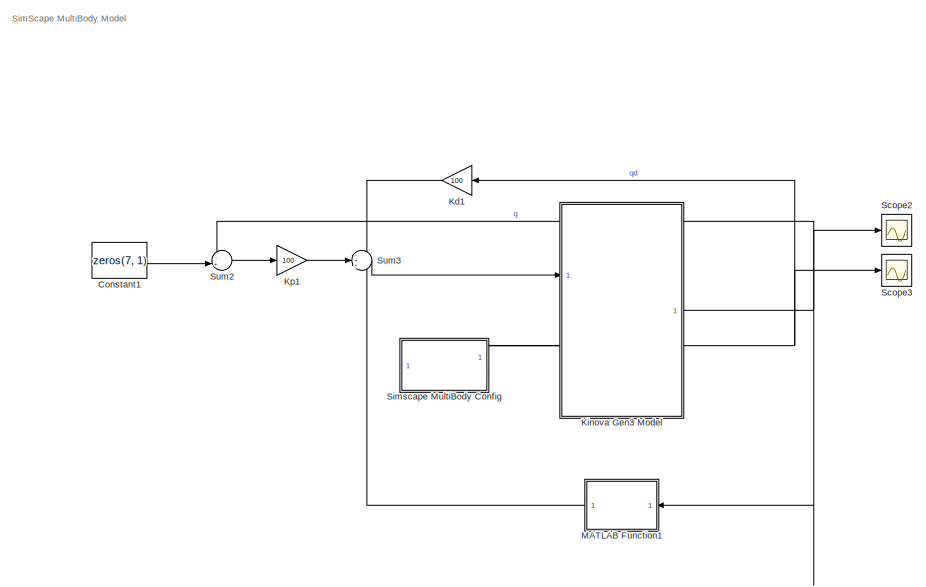
[diagram: root canvas - part 1/2, left side, full height]
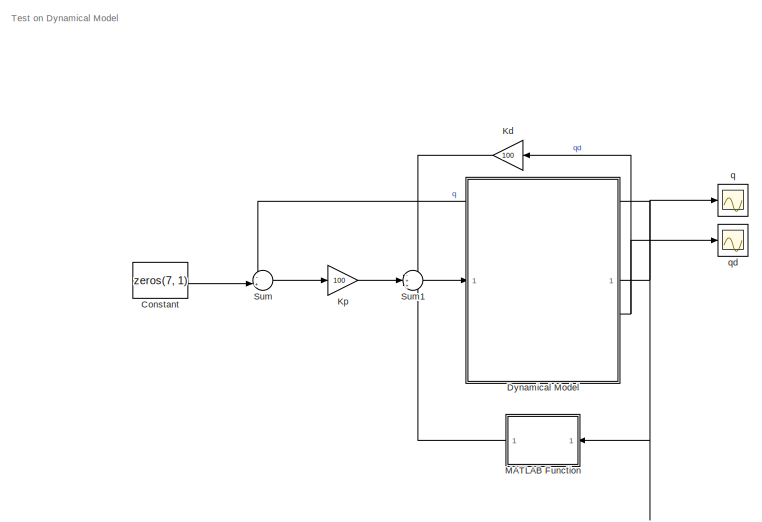
[diagram: root canvas - part 2/2, right side, full height]
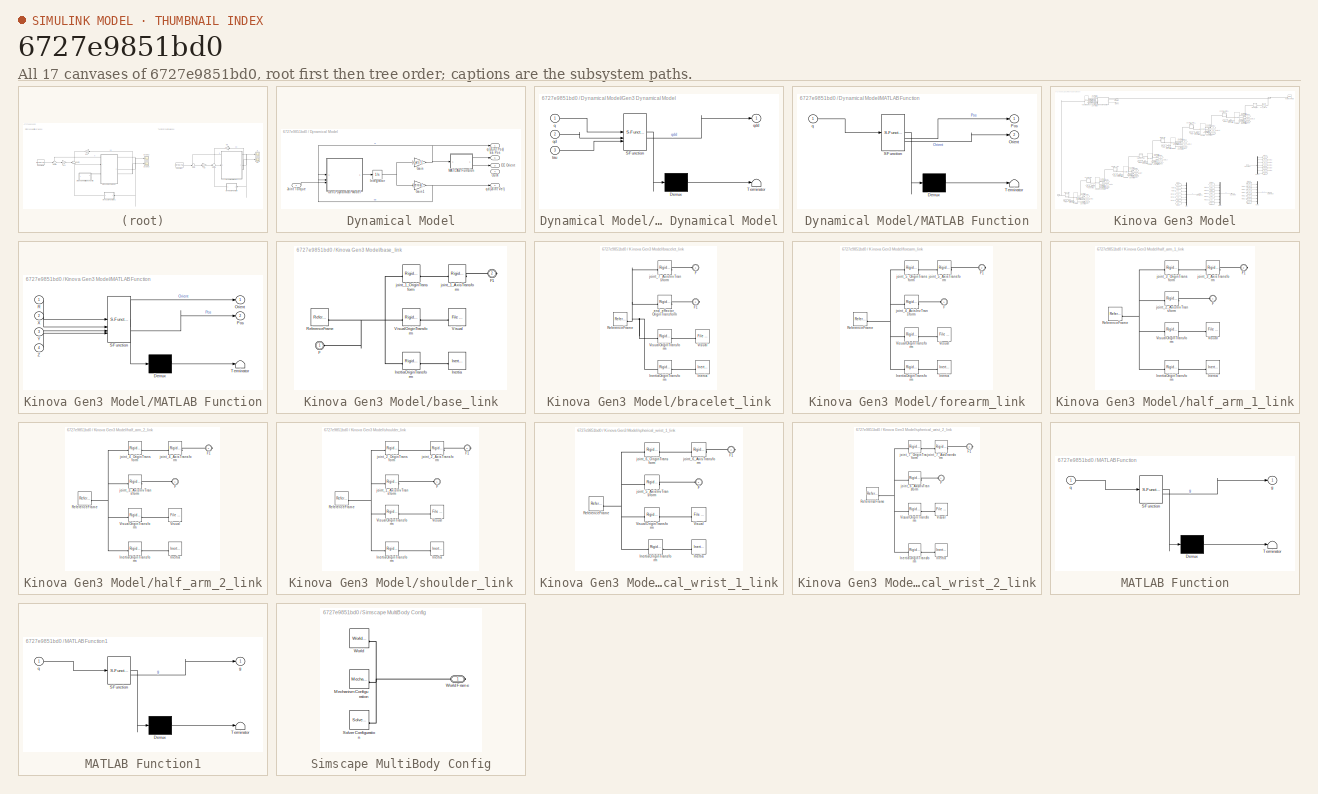
[diagram: thumbnail index - all 17 canvases of the model, root first then tree order]
MODEL slx_6727e9851bd0
KIND model
CONFIG AbsTol = auto
CONFIG EnableMultiTasking = off
CONFIG FixedStep = auto
CONFIG InitFcn = addpath('./../Robot Description/Robot Data Package/meshes/visual/')\naddpath('./../Dynamics and Kinematics/')\n\n% Controller Design\nDesign;
CONFIG MaxStep = auto
CONFIG MinStep = auto
CONFIG RelTol = 1e-3
CONFIG SampleTimeConstraint = Unconstrained
CONFIG SolverName = ode23tb
CONFIG StartTime = 0.0
CONFIG StopTime = 10.0
BLOCK [Constant] Constant
  Value = zeros(7, 1)
BLOCK [Constant] Constant1
  Value = zeros(7, 1)
BLOCK [SubSystem] Dynamical Model
BLOCK [Outport] Dynamical Model/EE Orient
  NameLocation = right
  Port = 3
BLOCK [Outport] Dynamical Model/EE Pos
  NameLocation = right
  Port = 5
BLOCK [Gain] Dynamical Model/Gain
  Gain = [eye(7), zeros(7)]
  Multiplication = Matrix(K*u)
BLOCK [Gain] Dynamical Model/Gain1
  Gain = [zeros(7), eye(7)]
  Multiplication = Matrix(K*u)
BLOCK [SubSystem] Dynamical Model/Gen3 Dynamical Model
  ErrorFcn = Stateflow.Translate.translate
  PermitHierarchicalResolution = ExplicitOnly
  SFBlockType = MATLAB Function
  TreatAsAtomicUnit = on
BLOCK [Demux] Dynamical Model/Gen3 Dynamical Model/ Demux 
  Outputs = 1
BLOCK [S-Function] Dynamical Model/Gen3 Dynamical Model/ SFunction 
  EnableBusSupport = on
  FunctionName = sf_sfun
  PortCounts = [3 2]
  SFcnIsStateOwnerBlock = off
  SFunctionDeploymentMode = off
  Tag = Stateflow S-Function 1
BLOCK [Terminator] Dynamical Model/Gen3 Dynamical Model/ Terminator 
BLOCK [Inport] Dynamical Model/Gen3 Dynamical Model/q
BLOCK [Inport] Dynamical Model/Gen3 Dynamical Model/qd
  Port = 2
BLOCK [Outport] Dynamical Model/Gen3 Dynamical Model/qdd
BLOCK [Inport] Dynamical Model/Gen3 Dynamical Model/tau
  Port = 3
BLOCK [Integrator] Dynamical Model/Integrator
  InitialCondition = qInitDM
BLOCK [Inport] Dynamical Model/Joint Torque
BLOCK [SubSystem] Dynamical Model/MATLAB Function
  ErrorFcn = Stateflow.Translate.translate
  PermitHierarchicalResolution = ExplicitOnly
  SFBlockType = MATLAB Function
  TreatAsAtomicUnit = on
BLOCK [Demux] Dynamical Model/MATLAB Function/ Demux 
  Outputs = 1
BLOCK [S-Function] Dynamical Model/MATLAB Function/ SFunction 
  EnableBusSupport = on
  FunctionName = sf_sfun
  PortCounts = [1 3]
  SFcnIsStateOwnerBlock = off
  SFunctionDeploymentMode = off
  Tag = Stateflow S-Function 3
BLOCK [Terminator] Dynamical Model/MATLAB Function/ Terminator 
BLOCK [Outport] Dynamical Model/MATLAB Function/Orient
  Port = 2
BLOCK [Outport] Dynamical Model/MATLAB Function/Pos
BLOCK [Inport] Dynamical Model/MATLAB Function/q
BLOCK [Outport] Dynamical Model/Out4
  Port = 4
BLOCK [Outport] Dynamical Model/q(Joint Pos)
  NameLocation = right
BLOCK [Outport] Dynamical Model/qd(Joint Vel)
  NameLocation = right
  Port = 2
BLOCK [Gain] Kd
  Gain = 100
  NameLocation = top
BLOCK [Gain] Kd1
  Gain = 100
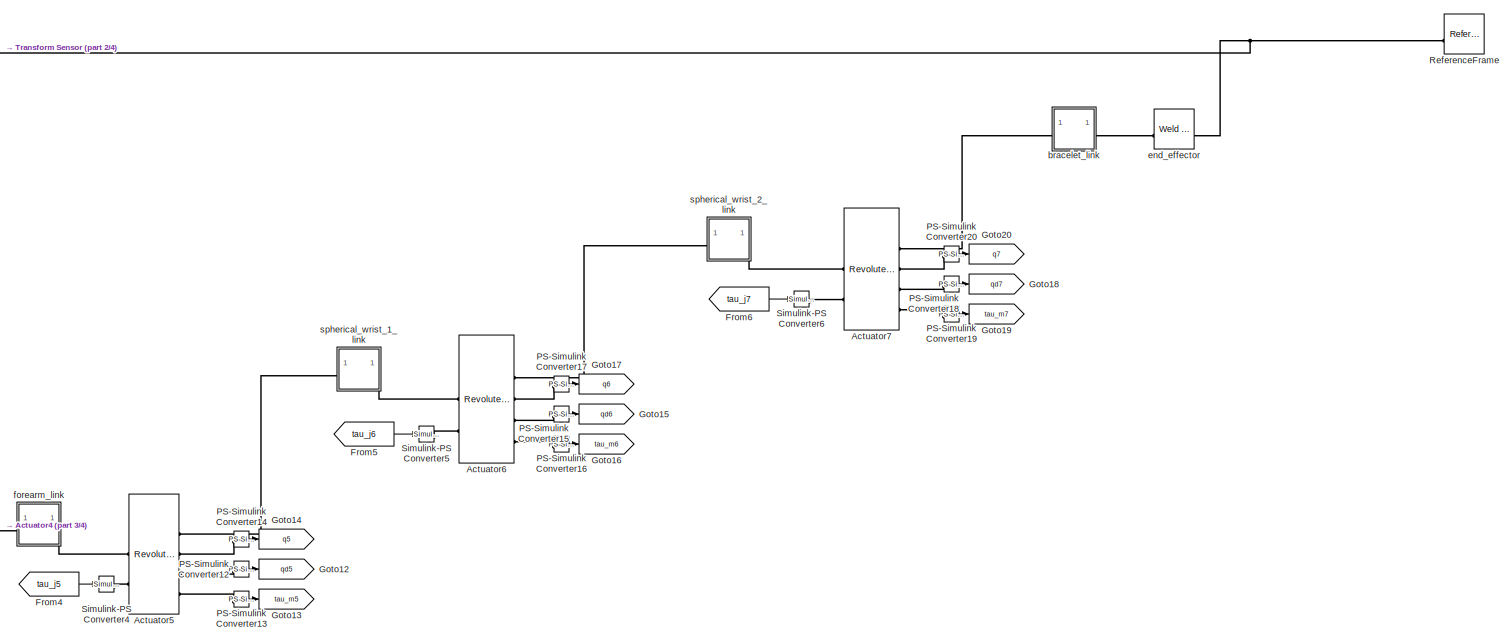
[diagram: Kinova Gen3 Model - part 1/4, top right region]
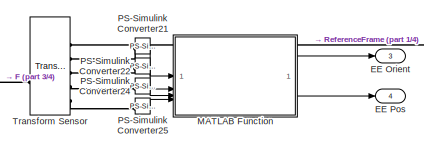
[diagram: Kinova Gen3 Model - part 2/4, top left region]
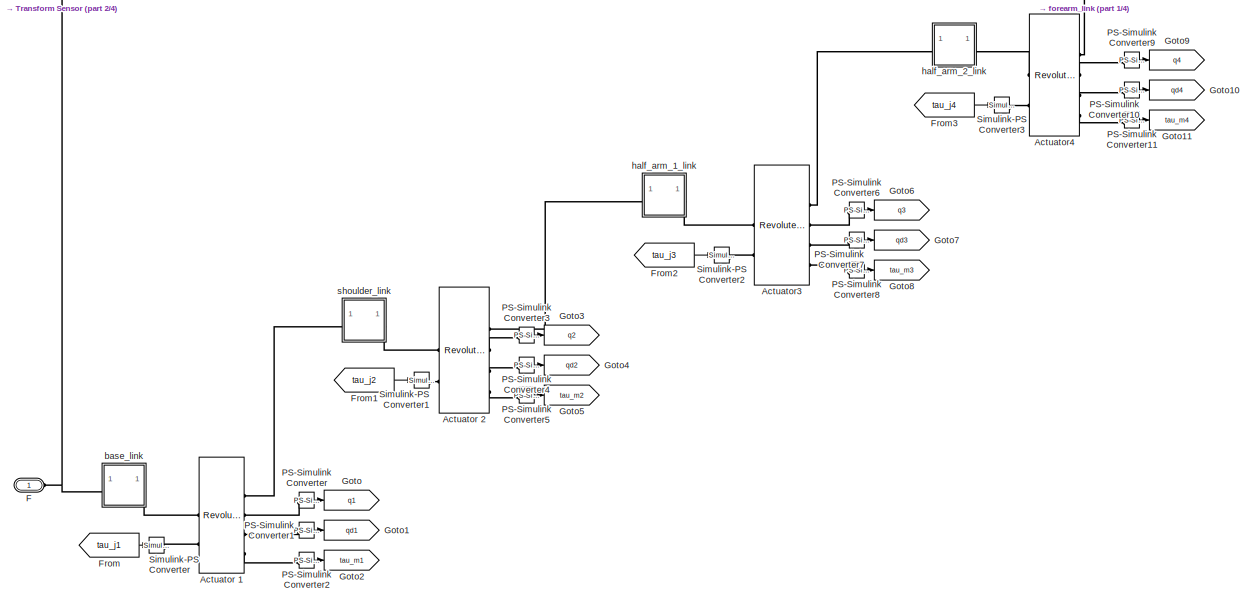
[diagram: Kinova Gen3 Model - part 3/4, bottom left region]
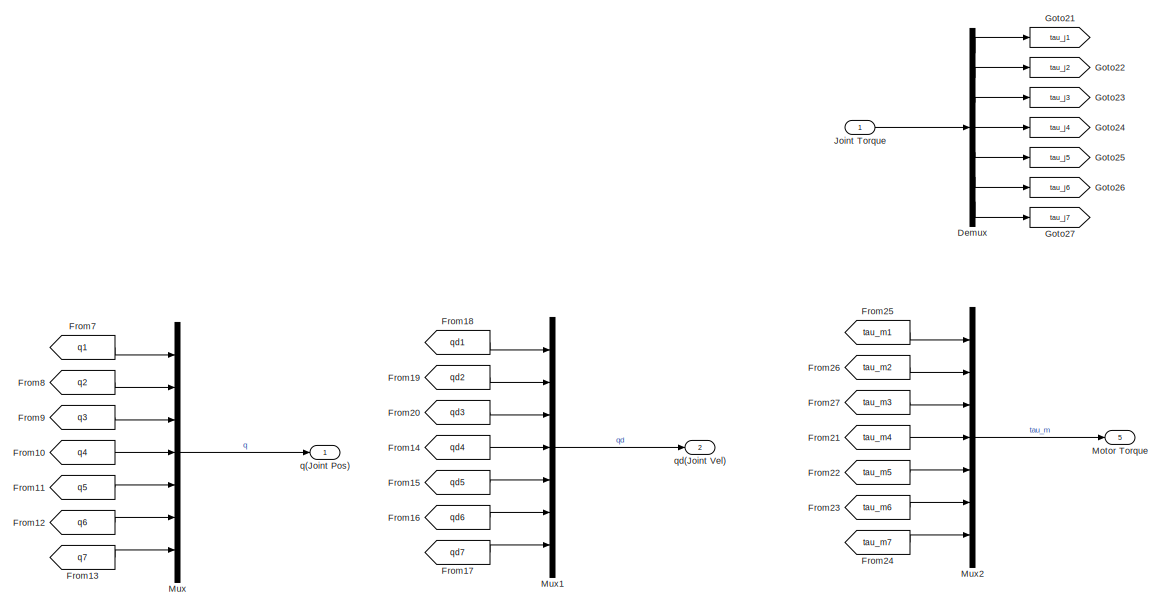
[diagram: Kinova Gen3 Model - part 4/4, bottom right region]
BLOCK [SubSystem] Kinova Gen3 Model
BLOCK [Reference] Kinova Gen3 Model/Actuator 1  REF=sm_lib/Joints/Revolute Joint
  SourceBlock = sm_lib/Joints/Revolute Joint
  SourceType = Revolute Joint
BLOCK [Reference] Kinova Gen3 Model/Actuator 2  REF=sm_lib/Joints/Revolute Joint
  SourceBlock = sm_lib/Joints/Revolute Joint
  SourceType = Revolute Joint
BLOCK [Reference] Kinova Gen3 Model/Actuator3  REF=sm_lib/Joints/Revolute Joint
  SourceBlock = sm_lib/Joints/Revolute Joint
  SourceType = Revolute Joint
BLOCK [Reference] Kinova Gen3 Model/Actuator4  REF=sm_lib/Joints/Revolute Joint
  SourceBlock = sm_lib/Joints/Revolute Joint
  SourceType = Revolute Joint
BLOCK [Reference] Kinova Gen3 Model/Actuator5  REF=sm_lib/Joints/Revolute Joint
  SourceBlock = sm_lib/Joints/Revolute Joint
  SourceType = Revolute Joint
BLOCK [Reference] Kinova Gen3 Model/Actuator6  REF=sm_lib/Joints/Revolute Joint
  SourceBlock = sm_lib/Joints/Revolute Joint
  SourceType = Revolute Joint
BLOCK [Reference] Kinova Gen3 Model/Actuator7  REF=sm_lib/Joints/Revolute Joint
  SourceBlock = sm_lib/Joints/Revolute Joint
  SourceType = Revolute Joint
BLOCK [Demux] Kinova Gen3 Model/Demux
  Outputs = 7
BLOCK [Outport] Kinova Gen3 Model/EE Orient
  Port = 3
BLOCK [Outport] Kinova Gen3 Model/EE Pos
  Port = 4
BLOCK [PMIOPort] Kinova Gen3 Model/F
  Side = Left
BLOCK [From] Kinova Gen3 Model/From
  GotoTag = tau_j1
BLOCK [From] Kinova Gen3 Model/From1
  GotoTag = tau_j2
BLOCK [From] Kinova Gen3 Model/From10
  GotoTag = q4
BLOCK [From] Kinova Gen3 Model/From11
  GotoTag = q5
BLOCK [From] Kinova Gen3 Model/From12
  GotoTag = q6
BLOCK [From] Kinova Gen3 Model/From13
  GotoTag = q7
BLOCK [From] Kinova Gen3 Model/From14
  GotoTag = qd4
BLOCK [From] Kinova Gen3 Model/From15
  GotoTag = qd5
BLOCK [From] Kinova Gen3 Model/From16
  GotoTag = qd6
BLOCK [From] Kinova Gen3 Model/From17
  GotoTag = qd7
BLOCK [From] Kinova Gen3 Model/From18
  GotoTag = qd1
BLOCK [From] Kinova Gen3 Model/From19
  GotoTag = qd2
BLOCK [From] Kinova Gen3 Model/From2
  GotoTag = tau_j3
BLOCK [From] Kinova Gen3 Model/From20
  GotoTag = qd3
  NameLocation = right
BLOCK [From] Kinova Gen3 Model/From21
  GotoTag = tau_m4
BLOCK [From] Kinova Gen3 Model/From22
  GotoTag = tau_m5
BLOCK [From] Kinova Gen3 Model/From23
  GotoTag = tau_m6
BLOCK [From] Kinova Gen3 Model/From24
  GotoTag = tau_m7
BLOCK [From] Kinova Gen3 Model/From25
  GotoTag = tau_m1
BLOCK [From] Kinova Gen3 Model/From26
  GotoTag = tau_m2
BLOCK [From] Kinova Gen3 Model/From27
  GotoTag = tau_m3
BLOCK [From] Kinova Gen3 Model/From3
  GotoTag = tau_j4
BLOCK [From] Kinova Gen3 Model/From4
  GotoTag = tau_j5
BLOCK [From] Kinova Gen3 Model/From5
  GotoTag = tau_j6
BLOCK [From] Kinova Gen3 Model/From6
  GotoTag = tau_j7
BLOCK [From] Kinova Gen3 Model/From7
  GotoTag = q1
BLOCK [From] Kinova Gen3 Model/From8
  GotoTag = q2
BLOCK [From] Kinova Gen3 Model/From9
  GotoTag = q3
BLOCK [Goto] Kinova Gen3 Model/Goto
  GotoTag = q1
BLOCK [Goto] Kinova Gen3 Model/Goto1
  GotoTag = qd1
BLOCK [Goto] Kinova Gen3 Model/Goto10
  GotoTag = qd4
BLOCK [Goto] Kinova Gen3 Model/Goto11
  GotoTag = tau_m4
BLOCK [Goto] Kinova Gen3 Model/Goto12
  GotoTag = qd5
BLOCK [Goto] Kinova Gen3 Model/Goto13
  GotoTag = tau_m5
BLOCK [Goto] Kinova Gen3 Model/Goto14
  GotoTag = q5
BLOCK [Goto] Kinova Gen3 Model/Goto15
  GotoTag = qd6
BLOCK [Goto] Kinova Gen3 Model/Goto16
  GotoTag = tau_m6
BLOCK [Goto] Kinova Gen3 Model/Goto17
  GotoTag = q6
BLOCK [Goto] Kinova Gen3 Model/Goto18
  GotoTag = qd7
BLOCK [Goto] Kinova Gen3 Model/Goto19
  GotoTag = tau_m7
BLOCK [Goto] Kinova Gen3 Model/Goto2
  GotoTag = tau_m1
BLOCK [Goto] Kinova Gen3 Model/Goto20
  GotoTag = q7
BLOCK [Goto] Kinova Gen3 Model/Goto21
  GotoTag = tau_j1
BLOCK [Goto] Kinova Gen3 Model/Goto22
  GotoTag = tau_j2
BLOCK [Goto] Kinova Gen3 Model/Goto23
  GotoTag = tau_j3
BLOCK [Goto] Kinova Gen3 Model/Goto24
  GotoTag = tau_j4
BLOCK [Goto] Kinova Gen3 Model/Goto25
  GotoTag = tau_j5
BLOCK [Goto] Kinova Gen3 Model/Goto26
  GotoTag = tau_j6
BLOCK [Goto] Kinova Gen3 Model/Goto27
  GotoTag = tau_j7
BLOCK [Goto] Kinova Gen3 Model/Goto3
  GotoTag = q2
BLOCK [Goto] Kinova Gen3 Model/Goto4
  GotoTag = qd2
BLOCK [Goto] Kinova Gen3 Model/Goto5
  GotoTag = tau_m2
BLOCK [Goto] Kinova Gen3 Model/Goto6
  GotoTag = q3
BLOCK [Goto] Kinova Gen3 Model/Goto7
  GotoTag = qd3
BLOCK [Goto] Kinova Gen3 Model/Goto8
  GotoTag = tau_m3
BLOCK [Goto] Kinova Gen3 Model/Goto9
  GotoTag = q4
BLOCK [Inport] Kinova Gen3 Model/Joint Torque
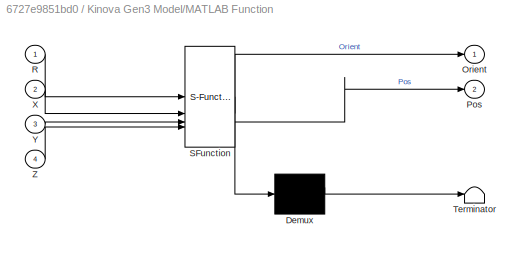
BLOCK [SubSystem] Kinova Gen3 Model/MATLAB Function
  ErrorFcn = Stateflow.Translate.translate
  PermitHierarchicalResolution = ExplicitOnly
  SFBlockType = MATLAB Function
  TreatAsAtomicUnit = on
BLOCK [Demux] Kinova Gen3 Model/MATLAB Function/ Demux 
  Outputs = 1
BLOCK [S-Function] Kinova Gen3 Model/MATLAB Function/ SFunction 
  EnableBusSupport = on
  FunctionName = sf_sfun
  PortCounts = [4 3]
  SFcnIsStateOwnerBlock = off
  SFunctionDeploymentMode = off
  Tag = Stateflow S-Function 2
BLOCK [Terminator] Kinova Gen3 Model/MATLAB Function/ Terminator 
BLOCK [Outport] Kinova Gen3 Model/MATLAB Function/Orient
BLOCK [Outport] Kinova Gen3 Model/MATLAB Function/Pos
  Port = 2
BLOCK [Inport] Kinova Gen3 Model/MATLAB Function/R
BLOCK [Inport] Kinova Gen3 Model/MATLAB Function/X
  Port = 2
BLOCK [Inport] Kinova Gen3 Model/MATLAB Function/Y
  Port = 3
BLOCK [Inport] Kinova Gen3 Model/MATLAB Function/Z
  Port = 4
BLOCK [Outport] Kinova Gen3 Model/Motor Torque
  Port = 5
BLOCK [Mux] Kinova Gen3 Model/Mux
  DisplayOption = bar
  Inputs = 7
BLOCK [Mux] Kinova Gen3 Model/Mux1
  DisplayOption = bar
  Inputs = 7
BLOCK [Mux] Kinova Gen3 Model/Mux2
  DisplayOption = bar
  Inputs = 7
BLOCK [Reference] Kinova Gen3 Model/PS-Simulink Converter  REF=nesl_utility/PS-Simulink
Converter
  SourceBlock = nesl_utility/PS-Simulink\nConverter
  SourceType = PS-Simulink\nConverter
BLOCK [Reference] Kinova Gen3 Model/PS-Simulink Converter1  REF=nesl_utility/PS-Simulink
Converter
  SourceBlock = nesl_utility/PS-Simulink\nConverter
  SourceType = PS-Simulink\nConverter
BLOCK [Reference] Kinova Gen3 Model/PS-Simulink Converter10  REF=nesl_utility/PS-Simulink
Converter
  SourceBlock = nesl_utility/PS-Simulink\nConverter
  SourceType = PS-Simulink\nConverter
BLOCK [Reference] Kinova Gen3 Model/PS-Simulink Converter11  REF=nesl_utility/PS-Simulink
Converter
  SourceBlock = nesl_utility/PS-Simulink\nConverter
  SourceType = PS-Simulink\nConverter
BLOCK [Reference] Kinova Gen3 Model/PS-Simulink Converter12  REF=nesl_utility/PS-Simulink
Converter
  SourceBlock = nesl_utility/PS-Simulink\nConverter
  SourceType = PS-Simulink\nConverter
BLOCK [Reference] Kinova Gen3 Model/PS-Simulink Converter13  REF=nesl_utility/PS-Simulink
Converter
  SourceBlock = nesl_utility/PS-Simulink\nConverter
  SourceType = PS-Simulink\nConverter
BLOCK [Reference] Kinova Gen3 Model/PS-Simulink Converter14  REF=nesl_utility/PS-Simulink
Converter
  SourceBlock = nesl_utility/PS-Simulink\nConverter
  SourceType = PS-Simulink\nConverter
BLOCK [Reference] Kinova Gen3 Model/PS-Simulink Converter15  REF=nesl_utility/PS-Simulink
Converter
  SourceBlock = nesl_utility/PS-Simulink\nConverter
  SourceType = PS-Simulink\nConverter
BLOCK [Reference] Kinova Gen3 Model/PS-Simulink Converter16  REF=nesl_utility/PS-Simulink
Converter
  SourceBlock = nesl_utility/PS-Simulink\nConverter
  SourceType = PS-Simulink\nConverter
BLOCK [Reference] Kinova Gen3 Model/PS-Simulink Converter17  REF=nesl_utility/PS-Simulink
Converter
  SourceBlock = nesl_utility/PS-Simulink\nConverter
  SourceType = PS-Simulink\nConverter
BLOCK [Reference] Kinova Gen3 Model/PS-Simulink Converter18  REF=nesl_utility/PS-Simulink
Converter
  SourceBlock = nesl_utility/PS-Simulink\nConverter
  SourceType = PS-Simulink\nConverter
BLOCK [Reference] Kinova Gen3 Model/PS-Simulink Converter19  REF=nesl_utility/PS-Simulink
Converter
  SourceBlock = nesl_utility/PS-Simulink\nConverter
  SourceType = PS-Simulink\nConverter
BLOCK [Reference] Kinova Gen3 Model/PS-Simulink Converter2  REF=nesl_utility/PS-Simulink
Converter
  SourceBlock = nesl_utility/PS-Simulink\nConverter
  SourceType = PS-Simulink\nConverter
BLOCK [Reference] Kinova Gen3 Model/PS-Simulink Converter20  REF=nesl_utility/PS-Simulink
Converter
  SourceBlock = nesl_utility/PS-Simulink\nConverter
  SourceType = PS-Simulink\nConverter
BLOCK [Reference] Kinova Gen3 Model/PS-Simulink Converter21  REF=nesl_utility/PS-Simulink
Converter
  SourceBlock = nesl_utility/PS-Simulink\nConverter
  SourceType = PS-Simulink\nConverter
BLOCK [Reference] Kinova Gen3 Model/PS-Simulink Converter22  REF=nesl_utility/PS-Simulink
Converter
  SourceBlock = nesl_utility/PS-Simulink\nConverter
  SourceType = PS-Simulink\nConverter
BLOCK [Reference] Kinova Gen3 Model/PS-Simulink Converter24  REF=nesl_utility/PS-Simulink
Converter
  SourceBlock = nesl_utility/PS-Simulink\nConverter
  SourceType = PS-Simulink\nConverter
BLOCK [Reference] Kinova Gen3 Model/PS-Simulink Converter25  REF=nesl_utility/PS-Simulink
Converter
  SourceBlock = nesl_utility/PS-Simulink\nConverter
  SourceType = PS-Simulink\nConverter
BLOCK [Reference] Kinova Gen3 Model/PS-Simulink Converter3  REF=nesl_utility/PS-Simulink
Converter
  SourceBlock = nesl_utility/PS-Simulink\nConverter
  SourceType = PS-Simulink\nConverter
BLOCK [Reference] Kinova Gen3 Model/PS-Simulink Converter4  REF=nesl_utility/PS-Simulink
Converter
  SourceBlock = nesl_utility/PS-Simulink\nConverter
  SourceType = PS-Simulink\nConverter
BLOCK [Reference] Kinova Gen3 Model/PS-Simulink Converter5  REF=nesl_utility/PS-Simulink
Converter
  SourceBlock = nesl_utility/PS-Simulink\nConverter
  SourceType = PS-Simulink\nConverter
BLOCK [Reference] Kinova Gen3 Model/PS-Simulink Converter6  REF=nesl_utility/PS-Simulink
Converter
  SourceBlock = nesl_utility/PS-Simulink\nConverter
  SourceType = PS-Simulink\nConverter
BLOCK [Reference] Kinova Gen3 Model/PS-Simulink Converter7  REF=nesl_utility/PS-Simulink
Converter
  SourceBlock = nesl_utility/PS-Simulink\nConverter
  SourceType = PS-Simulink\nConverter
BLOCK [Reference] Kinova Gen3 Model/PS-Simulink Converter8  REF=nesl_utility/PS-Simulink
Converter
  SourceBlock = nesl_utility/PS-Simulink\nConverter
  SourceType = PS-Simulink\nConverter
BLOCK [Reference] Kinova Gen3 Model/PS-Simulink Converter9  REF=nesl_utility/PS-Simulink
Converter
  SourceBlock = nesl_utility/PS-Simulink\nConverter
  SourceType = PS-Simulink\nConverter
BLOCK [Reference] Kinova Gen3 Model/ReferenceFrame  REF=sm_lib/Frames and
Transforms/Reference
Frame
  SourceBlock = sm_lib/Frames and\nTransforms/Reference\nFrame
  SourceType = Reference\nFrame
BLOCK [Reference] Kinova Gen3 Model/Simulink-PS Converter  REF=nesl_utility/Simulink-PS
Converter
  SourceBlock = nesl_utility/Simulink-PS\nConverter
  SourceType = Simulink-PS\nConverter
BLOCK [Reference] Kinova Gen3 Model/Simulink-PS Converter1  REF=nesl_utility/Simulink-PS
Converter
  SourceBlock = nesl_utility/Simulink-PS\nConverter
  SourceType = Simulink-PS\nConverter
BLOCK [Reference] Kinova Gen3 Model/Simulink-PS Converter2  REF=nesl_utility/Simulink-PS
Converter
  SourceBlock = nesl_utility/Simulink-PS\nConverter
  SourceType = Simulink-PS\nConverter
BLOCK [Reference] Kinova Gen3 Model/Simulink-PS Converter3  REF=nesl_utility/Simulink-PS
Converter
  SourceBlock = nesl_utility/Simulink-PS\nConverter
  SourceType = Simulink-PS\nConverter
BLOCK [Reference] Kinova Gen3 Model/Simulink-PS Converter4  REF=nesl_utility/Simulink-PS
Converter
  SourceBlock = nesl_utility/Simulink-PS\nConverter
  SourceType = Simulink-PS\nConverter
BLOCK [Reference] Kinova Gen3 Model/Simulink-PS Converter5  REF=nesl_utility/Simulink-PS
Converter
  SourceBlock = nesl_utility/Simulink-PS\nConverter
  SourceType = Simulink-PS\nConverter
BLOCK [Reference] Kinova Gen3 Model/Simulink-PS Converter6  REF=nesl_utility/Simulink-PS
Converter
  SourceBlock = nesl_utility/Simulink-PS\nConverter
  SourceType = Simulink-PS\nConverter
BLOCK [Reference] Kinova Gen3 Model/Transform Sensor  REF=sm_lib/Frames and
Transforms/Transform
Sensor
  SourceBlock = sm_lib/Frames and\nTransforms/Transform\nSensor
  SourceType = Transform\nSensor
BLOCK [SubSystem] Kinova Gen3 Model/base_link
BLOCK [PMIOPort] Kinova Gen3 Model/base_link/F
  Side = Left
BLOCK [PMIOPort] Kinova Gen3 Model/base_link/F1
  Port = 2
  Side = Right
BLOCK [Reference] Kinova Gen3 Model/base_link/Inertia  REF=sm_lib/Body Elements/Inertia
  SourceBlock = sm_lib/Body Elements/Inertia
  SourceType = Inertia
BLOCK [Reference] Kinova Gen3 Model/base_link/InertiaOriginTransform  REF=sm_lib/Frames and
Transforms/Rigid
Transform
  SourceBlock = sm_lib/Frames and\nTransforms/Rigid\nTransform
  SourceType = Rigid\nTransform
BLOCK [Reference] Kinova Gen3 Model/base_link/ReferenceFrame  REF=sm_lib/Frames and
Transforms/Reference
Frame
  SourceBlock = sm_lib/Frames and\nTransforms/Reference\nFrame
  SourceType = Reference\nFrame
BLOCK [Reference] Kinova Gen3 Model/base_link/Visual  REF=sm_lib/Body Elements/File Solid
  SourceBlock = sm_lib/Body Elements/File Solid
  SourceType = File Solid
BLOCK [Reference] Kinova Gen3 Model/base_link/VisualOriginTransform  REF=sm_lib/Frames and
Transforms/Rigid
Transform
  SourceBlock = sm_lib/Frames and\nTransforms/Rigid\nTransform
  SourceType = Rigid\nTransform
BLOCK [Reference] Kinova Gen3 Model/base_link/joint_1_AxisTransform  REF=sm_lib/Frames and
Transforms/Rigid
Transform
  SourceBlock = sm_lib/Frames and\nTransforms/Rigid\nTransform
  SourceType = Rigid\nTransform
BLOCK [Reference] Kinova Gen3 Model/base_link/joint_1_OriginTransform  REF=sm_lib/Frames and
Transforms/Rigid
Transform
  NameLocation = top
  SourceBlock = sm_lib/Frames and\nTransforms/Rigid\nTransform
  SourceType = Rigid\nTransform
BLOCK [SubSystem] Kinova Gen3 Model/bracelet_link
  NameLocation = top
BLOCK [PMIOPort] Kinova Gen3 Model/bracelet_link/F
  Side = Left
BLOCK [PMIOPort] Kinova Gen3 Model/bracelet_link/F1
  Port = 2
  Side = Right
BLOCK [Reference] Kinova Gen3 Model/bracelet_link/Inertia  REF=sm_lib/Body Elements/Inertia
  SourceBlock = sm_lib/Body Elements/Inertia
  SourceType = Inertia
BLOCK [Reference] Kinova Gen3 Model/bracelet_link/InertiaOriginTransform  REF=sm_lib/Frames and
Transforms/Rigid
Transform
  SourceBlock = sm_lib/Frames and\nTransforms/Rigid\nTransform
  SourceType = Rigid\nTransform
BLOCK [Reference] Kinova Gen3 Model/bracelet_link/ReferenceFrame  REF=sm_lib/Frames and
Transforms/Reference
Frame
  SourceBlock = sm_lib/Frames and\nTransforms/Reference\nFrame
  SourceType = Reference\nFrame
BLOCK [Reference] Kinova Gen3 Model/bracelet_link/Visual  REF=sm_lib/Body Elements/File Solid
  SourceBlock = sm_lib/Body Elements/File Solid
  SourceType = File Solid
BLOCK [Reference] Kinova Gen3 Model/bracelet_link/VisualOriginTransform  REF=sm_lib/Frames and
Transforms/Rigid
Transform
  SourceBlock = sm_lib/Frames and\nTransforms/Rigid\nTransform
  SourceType = Rigid\nTransform
BLOCK [Reference] Kinova Gen3 Model/bracelet_link/end_effector_OriginTransform  REF=sm_lib/Frames and
Transforms/Rigid
Transform
  SourceBlock = sm_lib/Frames and\nTransforms/Rigid\nTransform
  SourceType = Rigid\nTransform
BLOCK [Reference] Kinova Gen3 Model/bracelet_link/joint_7_AxisInvTransform  REF=sm_lib/Frames and
Transforms/Rigid
Transform
  SourceBlock = sm_lib/Frames and\nTransforms/Rigid\nTransform
  SourceType = Rigid\nTransform
BLOCK [Reference] Kinova Gen3 Model/end_effector  REF=sm_lib/Joints/Weld Joint
  SourceBlock = sm_lib/Joints/Weld Joint
  SourceType = Weld Joint
BLOCK [SubSystem] Kinova Gen3 Model/forearm_link
BLOCK [PMIOPort] Kinova Gen3 Model/forearm_link/F
  Side = Left
BLOCK [PMIOPort] Kinova Gen3 Model/forearm_link/F1
  Port = 2
  Side = Right
BLOCK [Reference] Kinova Gen3 Model/forearm_link/Inertia  REF=sm_lib/Body Elements/Inertia
  SourceBlock = sm_lib/Body Elements/Inertia
  SourceType = Inertia
BLOCK [Reference] Kinova Gen3 Model/forearm_link/InertiaOriginTransform  REF=sm_lib/Frames and
Transforms/Rigid
Transform
  SourceBlock = sm_lib/Frames and\nTransforms/Rigid\nTransform
  SourceType = Rigid\nTransform
BLOCK [Reference] Kinova Gen3 Model/forearm_link/ReferenceFrame  REF=sm_lib/Frames and
Transforms/Reference
Frame
  SourceBlock = sm_lib/Frames and\nTransforms/Reference\nFrame
  SourceType = Reference\nFrame
BLOCK [Reference] Kinova Gen3 Model/forearm_link/Visual  REF=sm_lib/Body Elements/File Solid
  SourceBlock = sm_lib/Body Elements/File Solid
  SourceType = File Solid
BLOCK [Reference] Kinova Gen3 Model/forearm_link/VisualOriginTransform  REF=sm_lib/Frames and
Transforms/Rigid
Transform
  SourceBlock = sm_lib/Frames and\nTransforms/Rigid\nTransform
  SourceType = Rigid\nTransform
BLOCK [Reference] Kinova Gen3 Model/forearm_link/joint_4_AxisInvTransform  REF=sm_lib/Frames and
Transforms/Rigid
Transform
  SourceBlock = sm_lib/Frames and\nTransforms/Rigid\nTransform
  SourceType = Rigid\nTransform
BLOCK [Reference] Kinova Gen3 Model/forearm_link/joint_5_AxisTransform  REF=sm_lib/Frames and
Transforms/Rigid
Transform
  SourceBlock = sm_lib/Frames and\nTransforms/Rigid\nTransform
  SourceType = Rigid\nTransform
BLOCK [Reference] Kinova Gen3 Model/forearm_link/joint_5_OriginTransform  REF=sm_lib/Frames and
Transforms/Rigid
Transform
  SourceBlock = sm_lib/Frames and\nTransforms/Rigid\nTransform
  SourceType = Rigid\nTransform
BLOCK [SubSystem] Kinova Gen3 Model/half_arm_1_link
BLOCK [PMIOPort] Kinova Gen3 Model/half_arm_1_link/F
  Side = Left
BLOCK [PMIOPort] Kinova Gen3 Model/half_arm_1_link/F1
  Port = 2
  Side = Right
BLOCK [Reference] Kinova Gen3 Model/half_arm_1_link/Inertia  REF=sm_lib/Body Elements/Inertia
  SourceBlock = sm_lib/Body Elements/Inertia
  SourceType = Inertia
BLOCK [Reference] Kinova Gen3 Model/half_arm_1_link/InertiaOriginTransform  REF=sm_lib/Frames and
Transforms/Rigid
Transform
  SourceBlock = sm_lib/Frames and\nTransforms/Rigid\nTransform
  SourceType = Rigid\nTransform
BLOCK [Reference] Kinova Gen3 Model/half_arm_1_link/ReferenceFrame  REF=sm_lib/Frames and
Transforms/Reference
Frame
  SourceBlock = sm_lib/Frames and\nTransforms/Reference\nFrame
  SourceType = Reference\nFrame
BLOCK [Reference] Kinova Gen3 Model/half_arm_1_link/Visual  REF=sm_lib/Body Elements/File Solid
  SourceBlock = sm_lib/Body Elements/File Solid
  SourceType = File Solid
BLOCK [Reference] Kinova Gen3 Model/half_arm_1_link/VisualOriginTransform  REF=sm_lib/Frames and
Transforms/Rigid
Transform
  SourceBlock = sm_lib/Frames and\nTransforms/Rigid\nTransform
  SourceType = Rigid\nTransform
BLOCK [Reference] Kinova Gen3 Model/half_arm_1_link/joint_2_AxisInvTransform  REF=sm_lib/Frames and
Transforms/Rigid
Transform
  SourceBlock = sm_lib/Frames and\nTransforms/Rigid\nTransform
  SourceType = Rigid\nTransform
BLOCK [Reference] Kinova Gen3 Model/half_arm_1_link/joint_3_AxisTransform  REF=sm_lib/Frames and
Transforms/Rigid
Transform
  SourceBlock = sm_lib/Frames and\nTransforms/Rigid\nTransform
  SourceType = Rigid\nTransform
BLOCK [Reference] Kinova Gen3 Model/half_arm_1_link/joint_3_OriginTransform  REF=sm_lib/Frames and
Transforms/Rigid
Transform
  SourceBlock = sm_lib/Frames and\nTransforms/Rigid\nTransform
  SourceType = Rigid\nTransform
BLOCK [SubSystem] Kinova Gen3 Model/half_arm_2_link
BLOCK [PMIOPort] Kinova Gen3 Model/half_arm_2_link/F
  Side = Left
BLOCK [PMIOPort] Kinova Gen3 Model/half_arm_2_link/F1
  Port = 2
  Side = Right
BLOCK [Reference] Kinova Gen3 Model/half_arm_2_link/Inertia  REF=sm_lib/Body Elements/Inertia
  SourceBlock = sm_lib/Body Elements/Inertia
  SourceType = Inertia
BLOCK [Reference] Kinova Gen3 Model/half_arm_2_link/InertiaOriginTransform  REF=sm_lib/Frames and
Transforms/Rigid
Transform
  SourceBlock = sm_lib/Frames and\nTransforms/Rigid\nTransform
  SourceType = Rigid\nTransform
BLOCK [Reference] Kinova Gen3 Model/half_arm_2_link/ReferenceFrame  REF=sm_lib/Frames and
Transforms/Reference
Frame
  SourceBlock = sm_lib/Frames and\nTransforms/Reference\nFrame
  SourceType = Reference\nFrame
BLOCK [Reference] Kinova Gen3 Model/half_arm_2_link/Visual  REF=sm_lib/Body Elements/File Solid
  SourceBlock = sm_lib/Body Elements/File Solid
  SourceType = File Solid
BLOCK [Reference] Kinova Gen3 Model/half_arm_2_link/VisualOriginTransform  REF=sm_lib/Frames and
Transforms/Rigid
Transform
  SourceBlock = sm_lib/Frames and\nTransforms/Rigid\nTransform
  SourceType = Rigid\nTransform
BLOCK [Reference] Kinova Gen3 Model/half_arm_2_link/joint_3_AxisInvTransform  REF=sm_lib/Frames and
Transforms/Rigid
Transform
  SourceBlock = sm_lib/Frames and\nTransforms/Rigid\nTransform
  SourceType = Rigid\nTransform
BLOCK [Reference] Kinova Gen3 Model/half_arm_2_link/joint_4_AxisTransform  REF=sm_lib/Frames and
Transforms/Rigid
Transform
  SourceBlock = sm_lib/Frames and\nTransforms/Rigid\nTransform
  SourceType = Rigid\nTransform
BLOCK [Reference] Kinova Gen3 Model/half_arm_2_link/joint_4_OriginTransform  REF=sm_lib/Frames and
Transforms/Rigid
Transform
  SourceBlock = sm_lib/Frames and\nTransforms/Rigid\nTransform
  SourceType = Rigid\nTransform
BLOCK [Outport] Kinova Gen3 Model/q(Joint Pos)
BLOCK [Outport] Kinova Gen3 Model/qd(Joint Vel)
  Port = 2
BLOCK [SubSystem] Kinova Gen3 Model/shoulder_link
BLOCK [PMIOPort] Kinova Gen3 Model/shoulder_link/F
  Side = Left
BLOCK [PMIOPort] Kinova Gen3 Model/shoulder_link/F1
  Port = 2
  Side = Right
BLOCK [Reference] Kinova Gen3 Model/shoulder_link/Inertia  REF=sm_lib/Body Elements/Inertia
  SourceBlock = sm_lib/Body Elements/Inertia
  SourceType = Inertia
BLOCK [Reference] Kinova Gen3 Model/shoulder_link/InertiaOriginTransform  REF=sm_lib/Frames and
Transforms/Rigid
Transform
  SourceBlock = sm_lib/Frames and\nTransforms/Rigid\nTransform
  SourceType = Rigid\nTransform
BLOCK [Reference] Kinova Gen3 Model/shoulder_link/ReferenceFrame  REF=sm_lib/Frames and
Transforms/Reference
Frame
  SourceBlock = sm_lib/Frames and\nTransforms/Reference\nFrame
  SourceType = Reference\nFrame
BLOCK [Reference] Kinova Gen3 Model/shoulder_link/Visual  REF=sm_lib/Body Elements/File Solid
  SourceBlock = sm_lib/Body Elements/File Solid
  SourceType = File Solid
BLOCK [Reference] Kinova Gen3 Model/shoulder_link/VisualOriginTransform  REF=sm_lib/Frames and
Transforms/Rigid
Transform
  SourceBlock = sm_lib/Frames and\nTransforms/Rigid\nTransform
  SourceType = Rigid\nTransform
BLOCK [Reference] Kinova Gen3 Model/shoulder_link/joint_1_AxisInvTransform  REF=sm_lib/Frames and
Transforms/Rigid
Transform
  SourceBlock = sm_lib/Frames and\nTransforms/Rigid\nTransform
  SourceType = Rigid\nTransform
BLOCK [Reference] Kinova Gen3 Model/shoulder_link/joint_2_AxisTransform  REF=sm_lib/Frames and
Transforms/Rigid
Transform
  SourceBlock = sm_lib/Frames and\nTransforms/Rigid\nTransform
  SourceType = Rigid\nTransform
BLOCK [Reference] Kinova Gen3 Model/shoulder_link/joint_2_OriginTransform  REF=sm_lib/Frames and
Transforms/Rigid
Transform
  SourceBlock = sm_lib/Frames and\nTransforms/Rigid\nTransform
  SourceType = Rigid\nTransform
BLOCK [SubSystem] Kinova Gen3 Model/spherical_wrist_1_link
BLOCK [PMIOPort] Kinova Gen3 Model/spherical_wrist_1_link/F
  Side = Left
BLOCK [PMIOPort] Kinova Gen3 Model/spherical_wrist_1_link/F1
  Port = 2
  Side = Right
BLOCK [Reference] Kinova Gen3 Model/spherical_wrist_1_link/Inertia  REF=sm_lib/Body Elements/Inertia
  SourceBlock = sm_lib/Body Elements/Inertia
  SourceType = Inertia
BLOCK [Reference] Kinova Gen3 Model/spherical_wrist_1_link/InertiaOriginTransform  REF=sm_lib/Frames and
Transforms/Rigid
Transform
  SourceBlock = sm_lib/Frames and\nTransforms/Rigid\nTransform
  SourceType = Rigid\nTransform
BLOCK [Reference] Kinova Gen3 Model/spherical_wrist_1_link/ReferenceFrame  REF=sm_lib/Frames and
Transforms/Reference
Frame
  SourceBlock = sm_lib/Frames and\nTransforms/Reference\nFrame
  SourceType = Reference\nFrame
BLOCK [Reference] Kinova Gen3 Model/spherical_wrist_1_link/Visual  REF=sm_lib/Body Elements/File Solid
  SourceBlock = sm_lib/Body Elements/File Solid
  SourceType = File Solid
BLOCK [Reference] Kinova Gen3 Model/spherical_wrist_1_link/VisualOriginTransform  REF=sm_lib/Frames and
Transforms/Rigid
Transform
  SourceBlock = sm_lib/Frames and\nTransforms/Rigid\nTransform
  SourceType = Rigid\nTransform
BLOCK [Reference] Kinova Gen3 Model/spherical_wrist_1_link/joint_5_AxisInvTransform  REF=sm_lib/Frames and
Transforms/Rigid
Transform
  SourceBlock = sm_lib/Frames and\nTransforms/Rigid\nTransform
  SourceType = Rigid\nTransform
BLOCK [Reference] Kinova Gen3 Model/spherical_wrist_1_link/joint_6_AxisTransform  REF=sm_lib/Frames and
Transforms/Rigid
Transform
  SourceBlock = sm_lib/Frames and\nTransforms/Rigid\nTransform
  SourceType = Rigid\nTransform
BLOCK [Reference] Kinova Gen3 Model/spherical_wrist_1_link/joint_6_OriginTransform  REF=sm_lib/Frames and
Transforms/Rigid
Transform
  SourceBlock = sm_lib/Frames and\nTransforms/Rigid\nTransform
  SourceType = Rigid\nTransform
BLOCK [SubSystem] Kinova Gen3 Model/spherical_wrist_2_link
BLOCK [PMIOPort] Kinova Gen3 Model/spherical_wrist_2_link/F
  Side = Left
BLOCK [PMIOPort] Kinova Gen3 Model/spherical_wrist_2_link/F1
  Port = 2
  Side = Right
BLOCK [Reference] Kinova Gen3 Model/spherical_wrist_2_link/Inertia  REF=sm_lib/Body Elements/Inertia
  SourceBlock = sm_lib/Body Elements/Inertia
  SourceType = Inertia
BLOCK [Reference] Kinova Gen3 Model/spherical_wrist_2_link/InertiaOriginTransform  REF=sm_lib/Frames and
Transforms/Rigid
Transform
  SourceBlock = sm_lib/Frames and\nTransforms/Rigid\nTransform
  SourceType = Rigid\nTransform
BLOCK [Reference] Kinova Gen3 Model/spherical_wrist_2_link/ReferenceFrame  REF=sm_lib/Frames and
Transforms/Reference
Frame
  SourceBlock = sm_lib/Frames and\nTransforms/Reference\nFrame
  SourceType = Reference\nFrame
BLOCK [Reference] Kinova Gen3 Model/spherical_wrist_2_link/Visual  REF=sm_lib/Body Elements/File Solid
  SourceBlock = sm_lib/Body Elements/File Solid
  SourceType = File Solid
BLOCK [Reference] Kinova Gen3 Model/spherical_wrist_2_link/VisualOriginTransform  REF=sm_lib/Frames and
Transforms/Rigid
Transform
  SourceBlock = sm_lib/Frames and\nTransforms/Rigid\nTransform
  SourceType = Rigid\nTransform
BLOCK [Reference] Kinova Gen3 Model/spherical_wrist_2_link/joint_6_AxisInvTransform  REF=sm_lib/Frames and
Transforms/Rigid
Transform
  SourceBlock = sm_lib/Frames and\nTransforms/Rigid\nTransform
  SourceType = Rigid\nTransform
BLOCK [Reference] Kinova Gen3 Model/spherical_wrist_2_link/joint_7_AxisTransform  REF=sm_lib/Frames and
Transforms/Rigid
Transform
  SourceBlock = sm_lib/Frames and\nTransforms/Rigid\nTransform
  SourceType = Rigid\nTransform
BLOCK [Reference] Kinova Gen3 Model/spherical_wrist_2_link/joint_7_OriginTransform  REF=sm_lib/Frames and
Transforms/Rigid
Transform
  SourceBlock = sm_lib/Frames and\nTransforms/Rigid\nTransform
  SourceType = Rigid\nTransform
BLOCK [Gain] Kp
  Gain = 100
BLOCK [Gain] Kp1
  Gain = 100
BLOCK [SubSystem] MATLAB Function
  ErrorFcn = Stateflow.Translate.translate
  PermitHierarchicalResolution = ExplicitOnly
  SFBlockType = MATLAB Function
  TreatAsAtomicUnit = on
BLOCK [Demux] MATLAB Function/ Demux 
  Outputs = 1
BLOCK [S-Function] MATLAB Function/ SFunction 
  EnableBusSupport = on
  FunctionName = sf_sfun
  PortCounts = [1 2]
  SFcnIsStateOwnerBlock = off
  SFunctionDeploymentMode = off
  Tag = Stateflow S-Function 4
BLOCK [Terminator] MATLAB Function/ Terminator 
BLOCK [Outport] MATLAB Function/g
BLOCK [Inport] MATLAB Function/q
BLOCK [SubSystem] MATLAB Function1
  ErrorFcn = Stateflow.Translate.translate
  PermitHierarchicalResolution = ExplicitOnly
  SFBlockType = MATLAB Function
  TreatAsAtomicUnit = on
BLOCK [Demux] MATLAB Function1/ Demux 
  Outputs = 1
BLOCK [S-Function] MATLAB Function1/ SFunction 
  EnableBusSupport = on
  FunctionName = sf_sfun
  PortCounts = [1 2]
  SFcnIsStateOwnerBlock = off
  SFunctionDeploymentMode = off
  Tag = Stateflow S-Function 7
BLOCK [Terminator] MATLAB Function1/ Terminator 
BLOCK [Outport] MATLAB Function1/g
BLOCK [Inport] MATLAB Function1/q
BLOCK [Scope] Scope2
  Floating = off
  NumInputPorts = 1
  ScopeSpecificationString = Simulink.scopes.TimeScopeBlockCfg('CurrentConfiguration', extmgr.ConfigurationSet(extmgr.Configuration('Core','General UI',true),extmgr.Configuration('Core','Source UI',true),extmgr.Configuration('Sources','WiredSimulink',true,'DataLoggingVariableName','ScopeData2'),extmgr.Configuration('Visuals','Time Domain',true,'SerializedDisplays',{struct('MinYLimReal','-0.14879','MaxYLimReal','1.33751','YLab...<+1640ch>
BLOCK [Scope] Scope3
  Floating = off
  NumInputPorts = 1
  ScopeSpecificationString = Simulink.scopes.TimeScopeBlockCfg('CurrentConfiguration', extmgr.ConfigurationSet(extmgr.Configuration('Core','General UI',true),extmgr.Configuration('Core','Source UI',true),extmgr.Configuration('Sources','WiredSimulink',true,'DataLoggingVariableName','ScopeData3'),extmgr.Configuration('Visuals','Time Domain',true,'SerializedDisplays',{struct('MinYLimReal','-1.50928','MaxYLimReal','1.20333','YLab...<+1633ch>
BLOCK [SubSystem] Simscape MultiBody Config
BLOCK [Reference] Simscape MultiBody Config/MechanismConfiguration  REF=sm_lib/Utilities/Mechanism
Configuration
  SourceBlock = sm_lib/Utilities/Mechanism\nConfiguration
  SourceType = Mechanism\nConfiguration
BLOCK [Reference] Simscape MultiBody Config/Solver Configuration  REF=nesl_utility/Solver
Configuration
  SourceBlock = nesl_utility/Solver\nConfiguration
  SourceType = Solver\nConfiguration
BLOCK [Reference] Simscape MultiBody Config/World  REF=sm_lib/Frames and
Transforms/World Frame
  SourceBlock = sm_lib/Frames and\nTransforms/World Frame
  SourceType = World Frame
BLOCK [PMIOPort] Simscape MultiBody Config/World Frame
  Side = Right
BLOCK [Sum] Sum
  Inputs = -+|
BLOCK [Sum] Sum1
  Inputs = -++
BLOCK [Sum] Sum2
  Inputs = -+|
BLOCK [Sum] Sum3
  Inputs = -++
BLOCK [Scope] q
  Floating = off
  NameLocation = right
  NumInputPorts = 1
  ScopeSpecificationString = Simulink.scopes.TimeScopeBlockCfg('CurrentConfiguration', extmgr.ConfigurationSet(extmgr.Configuration('Core','General UI',true),extmgr.Configuration('Core','Source UI',true),extmgr.Configuration('Sources','WiredSimulink',true),extmgr.Configuration('Visuals','Time Domain',true,'SerializedDisplays',{struct('MinYLimReal','-0.11951','MaxYLimReal','1.07565','YLabelReal','','MinYLimMag','0.00000','MaxY...<+1475ch>
BLOCK [Scope] qd
  Floating = off
  NameLocation = right
  NumInputPorts = 1
  ScopeSpecificationString = Simulink.scopes.TimeScopeBlockCfg('CurrentConfiguration', extmgr.ConfigurationSet(extmgr.Configuration('Core','General UI',true),extmgr.Configuration('Core','Source UI',true),extmgr.Configuration('Sources','WiredSimulink',true,'DataLoggingVariableName','ScopeData1'),extmgr.Configuration('Visuals','Time Domain',true,'SerializedDisplays',{struct('MinYLimReal','-1.08775','MaxYLimReal','0.28002','YLab...<+1521ch>
ANNOTATION (root): SimScape MultiBody Model
ANNOTATION (root): Test on Dynamical Model
LINE Constant1:1 -> Sum2:2
LINE Constant:1 -> Sum:2
NET Dynamical Model/Gain1:1 -> Dynamical Model/Gen3 Dynamical Model:2, Dynamical Model/qd(Joint Vel):1
NET Dynamical Model/Gain:1 -> Dynamical Model/Gen3 Dynamical Model:1, Dynamical Model/MATLAB Function:1, Dynamical Model/q(Joint Pos):1
LINE Dynamical Model/Gen3 Dynamical Model:1 -> Dynamical Model/Integrator:1
NET Dynamical Model/Integrator:1 -> Dynamical Model/Gain1:1, Dynamical Model/Gain:1
LINE Dynamical Model/Joint Torque:1 -> Dynamical Model/Gen3 Dynamical Model:3
LINE Dynamical Model/MATLAB Function:1 -> Dynamical Model/EE Pos:1
LINE Dynamical Model/MATLAB Function:2 -> Dynamical Model/EE Orient:1
NET Dynamical Model:1 -> MATLAB Function:1, Sum:1, q:1
NET Dynamical Model:2 -> Kd:1, qd:1
LINE Kd1:1 -> Sum3:1
LINE Kd:1 -> Sum1:1
LINE Kinova Gen3 Model/Demux:1 -> Kinova Gen3 Model/Goto21:1
LINE Kinova Gen3 Model/Demux:2 -> Kinova Gen3 Model/Goto22:1
LINE Kinova Gen3 Model/Demux:3 -> Kinova Gen3 Model/Goto23:1
LINE Kinova Gen3 Model/Demux:4 -> Kinova Gen3 Model/Goto24:1
LINE Kinova Gen3 Model/Demux:5 -> Kinova Gen3 Model/Goto25:1
LINE Kinova Gen3 Model/Demux:6 -> Kinova Gen3 Model/Goto26:1
LINE Kinova Gen3 Model/Demux:7 -> Kinova Gen3 Model/Goto27:1
LINE Kinova Gen3 Model/From10:1 -> Kinova Gen3 Model/Mux:4
LINE Kinova Gen3 Model/From11:1 -> Kinova Gen3 Model/Mux:5
LINE Kinova Gen3 Model/From12:1 -> Kinova Gen3 Model/Mux:6
LINE Kinova Gen3 Model/From13:1 -> Kinova Gen3 Model/Mux:7
LINE Kinova Gen3 Model/From14:1 -> Kinova Gen3 Model/Mux1:4
LINE Kinova Gen3 Model/From15:1 -> Kinova Gen3 Model/Mux1:5
LINE Kinova Gen3 Model/From16:1 -> Kinova Gen3 Model/Mux1:6
LINE Kinova Gen3 Model/From17:1 -> Kinova Gen3 Model/Mux1:7
LINE Kinova Gen3 Model/From18:1 -> Kinova Gen3 Model/Mux1:1
LINE Kinova Gen3 Model/From19:1 -> Kinova Gen3 Model/Mux1:2
LINE Kinova Gen3 Model/From1:1 -> Kinova Gen3 Model/Simulink-PS Converter1:1
LINE Kinova Gen3 Model/From20:1 -> Kinova Gen3 Model/Mux1:3
LINE Kinova Gen3 Model/From21:1 -> Kinova Gen3 Model/Mux2:4
LINE Kinova Gen3 Model/From22:1 -> Kinova Gen3 Model/Mux2:5
LINE Kinova Gen3 Model/From23:1 -> Kinova Gen3 Model/Mux2:6
LINE Kinova Gen3 Model/From24:1 -> Kinova Gen3 Model/Mux2:7
LINE Kinova Gen3 Model/From25:1 -> Kinova Gen3 Model/Mux2:1
LINE Kinova Gen3 Model/From26:1 -> Kinova Gen3 Model/Mux2:2
LINE Kinova Gen3 Model/From27:1 -> Kinova Gen3 Model/Mux2:3
LINE Kinova Gen3 Model/From2:1 -> Kinova Gen3 Model/Simulink-PS Converter2:1
LINE Kinova Gen3 Model/From3:1 -> Kinova Gen3 Model/Simulink-PS Converter3:1
LINE Kinova Gen3 Model/From4:1 -> Kinova Gen3 Model/Simulink-PS Converter4:1
LINE Kinova Gen3 Model/From5:1 -> Kinova Gen3 Model/Simulink-PS Converter5:1
LINE Kinova Gen3 Model/From6:1 -> Kinova Gen3 Model/Simulink-PS Converter6:1
LINE Kinova Gen3 Model/From7:1 -> Kinova Gen3 Model/Mux:1
LINE Kinova Gen3 Model/From8:1 -> Kinova Gen3 Model/Mux:2
LINE Kinova Gen3 Model/From9:1 -> Kinova Gen3 Model/Mux:3
LINE Kinova Gen3 Model/From:1 -> Kinova Gen3 Model/Simulink-PS Converter:1
LINE Kinova Gen3 Model/Joint Torque:1 -> Kinova Gen3 Model/Demux:1
LINE Kinova Gen3 Model/MATLAB Function:1 -> Kinova Gen3 Model/EE Orient:1
LINE Kinova Gen3 Model/MATLAB Function:2 -> Kinova Gen3 Model/EE Pos:1
LINE Kinova Gen3 Model/Mux1:1 -> Kinova Gen3 Model/qd(Joint Vel):1
LINE Kinova Gen3 Model/Mux2:1 -> Kinova Gen3 Model/Motor Torque:1
LINE Kinova Gen3 Model/Mux:1 -> Kinova Gen3 Model/q(Joint Pos):1
LINE Kinova Gen3 Model/PS-Simulink Converter10:1 -> Kinova Gen3 Model/Goto10:1
LINE Kinova Gen3 Model/PS-Simulink Converter11:1 -> Kinova Gen3 Model/Goto11:1
LINE Kinova Gen3 Model/PS-Simulink Converter12:1 -> Kinova Gen3 Model/Goto12:1
LINE Kinova Gen3 Model/PS-Simulink Converter13:1 -> Kinova Gen3 Model/Goto13:1
LINE Kinova Gen3 Model/PS-Simulink Converter14:1 -> Kinova Gen3 Model/Goto14:1
LINE Kinova Gen3 Model/PS-Simulink Converter15:1 -> Kinova Gen3 Model/Goto15:1
LINE Kinova Gen3 Model/PS-Simulink Converter16:1 -> Kinova Gen3 Model/Goto16:1
LINE Kinova Gen3 Model/PS-Simulink Converter17:1 -> Kinova Gen3 Model/Goto17:1
LINE Kinova Gen3 Model/PS-Simulink Converter18:1 -> Kinova Gen3 Model/Goto18:1
LINE Kinova Gen3 Model/PS-Simulink Converter19:1 -> Kinova Gen3 Model/Goto19:1
LINE Kinova Gen3 Model/PS-Simulink Converter1:1 -> Kinova Gen3 Model/Goto1:1
LINE Kinova Gen3 Model/PS-Simulink Converter20:1 -> Kinova Gen3 Model/Goto20:1
LINE Kinova Gen3 Model/PS-Simulink Converter21:1 -> Kinova Gen3 Model/MATLAB Function:1
LINE Kinova Gen3 Model/PS-Simulink Converter22:1 -> Kinova Gen3 Model/MATLAB Function:2
LINE Kinova Gen3 Model/PS-Simulink Converter24:1 -> Kinova Gen3 Model/MATLAB Function:3
LINE Kinova Gen3 Model/PS-Simulink Converter25:1 -> Kinova Gen3 Model/MATLAB Function:4
LINE Kinova Gen3 Model/PS-Simulink Converter2:1 -> Kinova Gen3 Model/Goto2:1
LINE Kinova Gen3 Model/PS-Simulink Converter3:1 -> Kinova Gen3 Model/Goto3:1
LINE Kinova Gen3 Model/PS-Simulink Converter4:1 -> Kinova Gen3 Model/Goto4:1
LINE Kinova Gen3 Model/PS-Simulink Converter5:1 -> Kinova Gen3 Model/Goto5:1
LINE Kinova Gen3 Model/PS-Simulink Converter6:1 -> Kinova Gen3 Model/Goto6:1
LINE Kinova Gen3 Model/PS-Simulink Converter7:1 -> Kinova Gen3 Model/Goto7:1
LINE Kinova Gen3 Model/PS-Simulink Converter8:1 -> Kinova Gen3 Model/Goto8:1
LINE Kinova Gen3 Model/PS-Simulink Converter9:1 -> Kinova Gen3 Model/Goto9:1
LINE Kinova Gen3 Model/PS-Simulink Converter:1 -> Kinova Gen3 Model/Goto:1
NET Kinova Gen3 Model:1 -> MATLAB Function1:1, Scope2:1, Sum2:1
NET Kinova Gen3 Model:2 -> Kd1:1, Scope3:1
LINE Kp1:1 -> Sum3:2
LINE Kp:1 -> Sum1:2
LINE MATLAB Function1:1 -> Sum3:3
LINE MATLAB Function:1 -> Sum1:3
LINE Sum1:1 -> Dynamical Model:1
LINE Sum2:1 -> Kp1:1
LINE Sum3:1 -> Kinova Gen3 Model:1
LINE Sum:1 -> Kp:1
PLINE Kinova Gen3 Model/Actuator 1:LConn1 -- Kinova Gen3 Model/base_link:RConn1
PLINE Kinova Gen3 Model/Actuator 1:LConn2 -- Kinova Gen3 Model/Simulink-PS Converter:RConn1
PLINE Kinova Gen3 Model/Actuator 1:RConn1 -- Kinova Gen3 Model/shoulder_link:LConn1
PLINE Kinova Gen3 Model/Actuator 1:RConn2 -- Kinova Gen3 Model/PS-Simulink Converter:LConn1
PLINE Kinova Gen3 Model/Actuator 1:RConn3 -- Kinova Gen3 Model/PS-Simulink Converter1:LConn1
PLINE Kinova Gen3 Model/Actuator 1:RConn4 -- Kinova Gen3 Model/PS-Simulink Converter2:LConn1
PLINE Kinova Gen3 Model/Actuator 2:LConn1 -- Kinova Gen3 Model/shoulder_link:RConn1
PLINE Kinova Gen3 Model/Actuator 2:LConn2 -- Kinova Gen3 Model/Simulink-PS Converter1:RConn1
PLINE Kinova Gen3 Model/Actuator 2:RConn1 -- Kinova Gen3 Model/half_arm_1_link:LConn1
PLINE Kinova Gen3 Model/Actuator 2:RConn2 -- Kinova Gen3 Model/PS-Simulink Converter3:LConn1
PLINE Kinova Gen3 Model/Actuator 2:RConn3 -- Kinova Gen3 Model/PS-Simulink Converter4:LConn1
PLINE Kinova Gen3 Model/Actuator 2:RConn4 -- Kinova Gen3 Model/PS-Simulink Converter5:LConn1
PLINE Kinova Gen3 Model/Actuator3:LConn1 -- Kinova Gen3 Model/half_arm_1_link:RConn1
PLINE Kinova Gen3 Model/Actuator3:LConn2 -- Kinova Gen3 Model/Simulink-PS Converter2:RConn1
PLINE Kinova Gen3 Model/Actuator3:RConn1 -- Kinova Gen3 Model/half_arm_2_link:LConn1
PLINE Kinova Gen3 Model/Actuator3:RConn2 -- Kinova Gen3 Model/PS-Simulink Converter6:LConn1
PLINE Kinova Gen3 Model/Actuator3:RConn3 -- Kinova Gen3 Model/PS-Simulink Converter7:LConn1
PLINE Kinova Gen3 Model/Actuator3:RConn4 -- Kinova Gen3 Model/PS-Simulink Converter8:LConn1
PLINE Kinova Gen3 Model/Actuator4:LConn1 -- Kinova Gen3 Model/half_arm_2_link:RConn1
PLINE Kinova Gen3 Model/Actuator4:LConn2 -- Kinova Gen3 Model/Simulink-PS Converter3:RConn1
PLINE Kinova Gen3 Model/Actuator4:RConn1 -- Kinova Gen3 Model/forearm_link:LConn1
PLINE Kinova Gen3 Model/Actuator4:RConn2 -- Kinova Gen3 Model/PS-Simulink Converter9:LConn1
PLINE Kinova Gen3 Model/Actuator4:RConn3 -- Kinova Gen3 Model/PS-Simulink Converter10:LConn1
PLINE Kinova Gen3 Model/Actuator4:RConn4 -- Kinova Gen3 Model/PS-Simulink Converter11:LConn1
PLINE Kinova Gen3 Model/Actuator5:LConn1 -- Kinova Gen3 Model/forearm_link:RConn1
PLINE Kinova Gen3 Model/Actuator5:LConn2 -- Kinova Gen3 Model/Simulink-PS Converter4:RConn1
PLINE Kinova Gen3 Model/Actuator5:RConn1 -- Kinova Gen3 Model/spherical_wrist_1_link:LConn1
PLINE Kinova Gen3 Model/Actuator5:RConn2 -- Kinova Gen3 Model/PS-Simulink Converter14:LConn1
PLINE Kinova Gen3 Model/Actuator5:RConn3 -- Kinova Gen3 Model/PS-Simulink Converter12:LConn1
PLINE Kinova Gen3 Model/Actuator5:RConn4 -- Kinova Gen3 Model/PS-Simulink Converter13:LConn1
PLINE Kinova Gen3 Model/Actuator6:LConn1 -- Kinova Gen3 Model/spherical_wrist_1_link:RConn1
PLINE Kinova Gen3 Model/Actuator6:LConn2 -- Kinova Gen3 Model/Simulink-PS Converter5:RConn1
PLINE Kinova Gen3 Model/Actuator6:RConn1 -- Kinova Gen3 Model/spherical_wrist_2_link:LConn1
PLINE Kinova Gen3 Model/Actuator6:RConn2 -- Kinova Gen3 Model/PS-Simulink Converter17:LConn1
PLINE Kinova Gen3 Model/Actuator6:RConn3 -- Kinova Gen3 Model/PS-Simulink Converter15:LConn1
PLINE Kinova Gen3 Model/Actuator6:RConn4 -- Kinova Gen3 Model/PS-Simulink Converter16:LConn1
PLINE Kinova Gen3 Model/Actuator7:LConn1 -- Kinova Gen3 Model/spherical_wrist_2_link:RConn1
PLINE Kinova Gen3 Model/Actuator7:LConn2 -- Kinova Gen3 Model/Simulink-PS Converter6:RConn1
PLINE Kinova Gen3 Model/Actuator7:RConn1 -- Kinova Gen3 Model/bracelet_link:LConn1
PLINE Kinova Gen3 Model/Actuator7:RConn2 -- Kinova Gen3 Model/PS-Simulink Converter20:LConn1
PLINE Kinova Gen3 Model/Actuator7:RConn3 -- Kinova Gen3 Model/PS-Simulink Converter18:LConn1
PLINE Kinova Gen3 Model/Actuator7:RConn4 -- Kinova Gen3 Model/PS-Simulink Converter19:LConn1
PNET net1: Kinova Gen3 Model/F:RConn1 -- Kinova Gen3 Model/Transform Sensor:LConn1 -- Kinova Gen3 Model/base_link:LConn1
PLINE Kinova Gen3 Model/PS-Simulink Converter21:LConn1 -- Kinova Gen3 Model/Transform Sensor:RConn2
PLINE Kinova Gen3 Model/PS-Simulink Converter22:LConn1 -- Kinova Gen3 Model/Transform Sensor:RConn3
PLINE Kinova Gen3 Model/PS-Simulink Converter24:LConn1 -- Kinova Gen3 Model/Transform Sensor:RConn4
PLINE Kinova Gen3 Model/PS-Simulink Converter25:LConn1 -- Kinova Gen3 Model/Transform Sensor:RConn5
PNET net2: Kinova Gen3 Model/ReferenceFrame:RConn1 -- Kinova Gen3 Model/Transform Sensor:RConn1 -- Kinova Gen3 Model/end_effector:RConn1
PLINE Kinova Gen3 Model/base_link/F1:RConn1 -- Kinova Gen3 Model/base_link/joint_1_AxisTransform:RConn1
PNET net3: Kinova Gen3 Model/base_link/F:RConn1 -- Kinova Gen3 Model/base_link/InertiaOriginTransform:LConn1 -- Kinova Gen3 Model/base_link/ReferenceFrame:RConn1 -- Kinova Gen3 Model/base_link/VisualOriginTransform:LConn1 -- Kinova Gen3 Model/base_link/joint_1_OriginTransform:LConn1
PLINE Kinova Gen3 Model/base_link/Inertia:RConn1 -- Kinova Gen3 Model/base_link/InertiaOriginTransform:RConn1
PLINE Kinova Gen3 Model/base_link/Visual:RConn1 -- Kinova Gen3 Model/base_link/VisualOriginTransform:RConn1
PLINE Kinova Gen3 Model/base_link/joint_1_AxisTransform:LConn1 -- Kinova Gen3 Model/base_link/joint_1_OriginTransform:RConn1
PLINE Kinova Gen3 Model/bracelet_link/F1:RConn1 -- Kinova Gen3 Model/bracelet_link/end_effector_OriginTransform:RConn1
PLINE Kinova Gen3 Model/bracelet_link/F:RConn1 -- Kinova Gen3 Model/bracelet_link/joint_7_AxisInvTransform:RConn1
PLINE Kinova Gen3 Model/bracelet_link/Inertia:RConn1 -- Kinova Gen3 Model/bracelet_link/InertiaOriginTransform:RConn1
PNET net4: Kinova Gen3 Model/bracelet_link/InertiaOriginTransform:LConn1 -- Kinova Gen3 Model/bracelet_link/ReferenceFrame:RConn1 -- Kinova Gen3 Model/bracelet_link/VisualOriginTransform:LConn1 -- Kinova Gen3 Model/bracelet_link/end_effector_OriginTransform:LConn1 -- Kinova Gen3 Model/bracelet_link/joint_7_AxisInvTransform:LConn1
PLINE Kinova Gen3 Model/bracelet_link/Visual:RConn1 -- Kinova Gen3 Model/bracelet_link/VisualOriginTransform:RConn1
PLINE Kinova Gen3 Model/bracelet_link:RConn1 -- Kinova Gen3 Model/end_effector:LConn1
PLINE Kinova Gen3 Model/forearm_link/F1:RConn1 -- Kinova Gen3 Model/forearm_link/joint_5_AxisTransform:RConn1
PLINE Kinova Gen3 Model/forearm_link/F:RConn1 -- Kinova Gen3 Model/forearm_link/joint_4_AxisInvTransform:RConn1
PLINE Kinova Gen3 Model/forearm_link/Inertia:RConn1 -- Kinova Gen3 Model/forearm_link/InertiaOriginTransform:RConn1
PNET net5: Kinova Gen3 Model/forearm_link/InertiaOriginTransform:LConn1 -- Kinova Gen3 Model/forearm_link/ReferenceFrame:RConn1 -- Kinova Gen3 Model/forearm_link/VisualOriginTransform:LConn1 -- Kinova Gen3 Model/forearm_link/joint_4_AxisInvTransform:LConn1 -- Kinova Gen3 Model/forearm_link/joint_5_OriginTransform:LConn1
PLINE Kinova Gen3 Model/forearm_link/Visual:RConn1 -- Kinova Gen3 Model/forearm_link/VisualOriginTransform:RConn1
PLINE Kinova Gen3 Model/forearm_link/joint_5_AxisTransform:LConn1 -- Kinova Gen3 Model/forearm_link/joint_5_OriginTransform:RConn1
PLINE Kinova Gen3 Model/half_arm_1_link/F1:RConn1 -- Kinova Gen3 Model/half_arm_1_link/joint_3_AxisTransform:RConn1
PLINE Kinova Gen3 Model/half_arm_1_link/F:RConn1 -- Kinova Gen3 Model/half_arm_1_link/joint_2_AxisInvTransform:RConn1
PLINE Kinova Gen3 Model/half_arm_1_link/Inertia:RConn1 -- Kinova Gen3 Model/half_arm_1_link/InertiaOriginTransform:RConn1
PNET net6: Kinova Gen3 Model/half_arm_1_link/InertiaOriginTransform:LConn1 -- Kinova Gen3 Model/half_arm_1_link/ReferenceFrame:RConn1 -- Kinova Gen3 Model/half_arm_1_link/VisualOriginTransform:LConn1 -- Kinova Gen3 Model/half_arm_1_link/joint_2_AxisInvTransform:LConn1 -- Kinova Gen3 Model/half_arm_1_link/joint_3_OriginTransform:LConn1
PLINE Kinova Gen3 Model/half_arm_1_link/Visual:RConn1 -- Kinova Gen3 Model/half_arm_1_link/VisualOriginTransform:RConn1
PLINE Kinova Gen3 Model/half_arm_1_link/joint_3_AxisTransform:LConn1 -- Kinova Gen3 Model/half_arm_1_link/joint_3_OriginTransform:RConn1
PLINE Kinova Gen3 Model/half_arm_2_link/F1:RConn1 -- Kinova Gen3 Model/half_arm_2_link/joint_4_AxisTransform:RConn1
PLINE Kinova Gen3 Model/half_arm_2_link/F:RConn1 -- Kinova Gen3 Model/half_arm_2_link/joint_3_AxisInvTransform:RConn1
PLINE Kinova Gen3 Model/half_arm_2_link/Inertia:RConn1 -- Kinova Gen3 Model/half_arm_2_link/InertiaOriginTransform:RConn1
PNET net7: Kinova Gen3 Model/half_arm_2_link/InertiaOriginTransform:LConn1 -- Kinova Gen3 Model/half_arm_2_link/ReferenceFrame:RConn1 -- Kinova Gen3 Model/half_arm_2_link/VisualOriginTransform:LConn1 -- Kinova Gen3 Model/half_arm_2_link/joint_3_AxisInvTransform:LConn1 -- Kinova Gen3 Model/half_arm_2_link/joint_4_OriginTransform:LConn1
PLINE Kinova Gen3 Model/half_arm_2_link/Visual:RConn1 -- Kinova Gen3 Model/half_arm_2_link/VisualOriginTransform:RConn1
PLINE Kinova Gen3 Model/half_arm_2_link/joint_4_AxisTransform:LConn1 -- Kinova Gen3 Model/half_arm_2_link/joint_4_OriginTransform:RConn1
PLINE Kinova Gen3 Model/shoulder_link/F1:RConn1 -- Kinova Gen3 Model/shoulder_link/joint_2_AxisTransform:RConn1
PLINE Kinova Gen3 Model/shoulder_link/F:RConn1 -- Kinova Gen3 Model/shoulder_link/joint_1_AxisInvTransform:RConn1
PLINE Kinova Gen3 Model/shoulder_link/Inertia:RConn1 -- Kinova Gen3 Model/shoulder_link/InertiaOriginTransform:RConn1
PNET net8: Kinova Gen3 Model/shoulder_link/InertiaOriginTransform:LConn1 -- Kinova Gen3 Model/shoulder_link/ReferenceFrame:RConn1 -- Kinova Gen3 Model/shoulder_link/VisualOriginTransform:LConn1 -- Kinova Gen3 Model/shoulder_link/joint_1_AxisInvTransform:LConn1 -- Kinova Gen3 Model/shoulder_link/joint_2_OriginTransform:LConn1
PLINE Kinova Gen3 Model/shoulder_link/Visual:RConn1 -- Kinova Gen3 Model/shoulder_link/VisualOriginTransform:RConn1
PLINE Kinova Gen3 Model/shoulder_link/joint_2_AxisTransform:LConn1 -- Kinova Gen3 Model/shoulder_link/joint_2_OriginTransform:RConn1
PLINE Kinova Gen3 Model/spherical_wrist_1_link/F1:RConn1 -- Kinova Gen3 Model/spherical_wrist_1_link/joint_6_AxisTransform:RConn1
PLINE Kinova Gen3 Model/spherical_wrist_1_link/F:RConn1 -- Kinova Gen3 Model/spherical_wrist_1_link/joint_5_AxisInvTransform:RConn1
PLINE Kinova Gen3 Model/spherical_wrist_1_link/Inertia:RConn1 -- Kinova Gen3 Model/spherical_wrist_1_link/InertiaOriginTransform:RConn1
PNET net9: Kinova Gen3 Model/spherical_wrist_1_link/InertiaOriginTransform:LConn1 -- Kinova Gen3 Model/spherical_wrist_1_link/ReferenceFrame:RConn1 -- Kinova Gen3 Model/spherical_wrist_1_link/VisualOriginTransform:LConn1 -- Kinova Gen3 Model/spherical_wrist_1_link/joint_5_AxisInvTransform:LConn1 -- Kinova Gen3 Model/spherical_wrist_1_link/joint_6_OriginTransform:LConn1
PLINE Kinova Gen3 Model/spherical_wrist_1_link/Visual:RConn1 -- Kinova Gen3 Model/spherical_wrist_1_link/VisualOriginTransform:RConn1
PLINE Kinova Gen3 Model/spherical_wrist_1_link/joint_6_AxisTransform:LConn1 -- Kinova Gen3 Model/spherical_wrist_1_link/joint_6_OriginTransform:RConn1
PLINE Kinova Gen3 Model/spherical_wrist_2_link/F1:RConn1 -- Kinova Gen3 Model/spherical_wrist_2_link/joint_7_AxisTransform:RConn1
PLINE Kinova Gen3 Model/spherical_wrist_2_link/F:RConn1 -- Kinova Gen3 Model/spherical_wrist_2_link/joint_6_AxisInvTransform:RConn1
PLINE Kinova Gen3 Model/spherical_wrist_2_link/Inertia:RConn1 -- Kinova Gen3 Model/spherical_wrist_2_link/InertiaOriginTransform:RConn1
PNET net10: Kinova Gen3 Model/spherical_wrist_2_link/InertiaOriginTransform:LConn1 -- Kinova Gen3 Model/spherical_wrist_2_link/ReferenceFrame:RConn1 -- Kinova Gen3 Model/spherical_wrist_2_link/VisualOriginTransform:LConn1 -- Kinova Gen3 Model/spherical_wrist_2_link/joint_6_AxisInvTransform:LConn1 -- Kinova Gen3 Model/spherical_wrist_2_link/joint_7_OriginTransform:LConn1
PLINE Kinova Gen3 Model/spherical_wrist_2_link/Visual:RConn1 -- Kinova Gen3 Model/spherical_wrist_2_link/VisualOriginTransform:RConn1
PLINE Kinova Gen3 Model/spherical_wrist_2_link/joint_7_AxisTransform:LConn1 -- Kinova Gen3 Model/spherical_wrist_2_link/joint_7_OriginTransform:RConn1
PLINE Kinova Gen3 Model:LConn1 -- Simscape MultiBody Config:RConn1
PNET net11: Simscape MultiBody Config/MechanismConfiguration:RConn1 -- Simscape MultiBody Config/Solver Configuration:RConn1 -- Simscape MultiBody Config/World Frame:RConn1 -- Simscape MultiBody Config/World:RConn1
note: NET lines group one-source signal fan-out (src -> all destinations, sorted); 1:1 wires keep LINE; PNET lines group multi-terminal physical nets as a canonical sorted terminal list (undirected conserving connections); 2-terminal nets keep the pairwise PLINE form
CHART Dynamical Model/Gen3 Dynamical Model states=1 transitions=1
  STATE_LABEL 'eML_blk_kernel()'
  STATE_LABEL "SCRIPT:\nfunction qdd = fcn(q, qd, tau) %#codegen\n    coder.extrinsic('Gen3ODEFun');\n\n    qdd = zeros(14, 1);\n    qdd = Gen3ODEFun(0, [q; qd], tau);\nend\n"
CHART Kinova Gen3 Model/MATLAB Function states=1 transitions=1
  STATE_LABEL 'eML_blk_kernel()'
  STATE_LABEL 'SCRIPT:\nfunction [Orient, Pos] = ExtractPos(R, X, Y, Z)\n    Orient = Rot2Eul(R);        % Order = [Yaw - Pitch - Roll]\n    Pos    = [X, Y, Z];\nend'
CHART Dynamical Model/MATLAB Function states=1 transitions=1
  STATE_LABEL 'eML_blk_kernel()'
  STATE_LABEL "SCRIPT:\nfunction [Pos, Orient] = FK(q) %#codegen\n    coder.extrinsic('Gen3FK');\n\n    tmp = zeros(6, 1);\n    tmp = Gen3FK(q);\n\n    Pos    = tmp(1:3, 1);\n    Orient = tmp(4:6, 1);      % Order = [Yaw - Pitch - Roll]\nend"
CHART MATLAB Function states=1 transitions=1
  STATE_LABEL 'eML_blk_kernel()'
  STATE_LABEL "SCRIPT:\nfunction g = Gravity(q) %#codegen\n    coder.extrinsic('Gen3ODEFun_g');\n\n    g = zeros(7, 1);\n    g = Gen3ODEFun_g(q);\nend"
CHART MATLAB Function1 states=1 transitions=1
  STATE_LABEL 'eML_blk_kernel()'
  STATE_LABEL "SCRIPT:\nfunction g = Gravity(q) %#codegen\n    coder.extrinsic('Gen3ODEFun_g');\n\n    g = zeros(7, 1);\n    g = Gen3ODEFun_g(q);\nend"
CHART  states=0 transitions=0
CHART  states=0 transitions=0
CHART  states=0 transitions=0
CHART  states=0 transitions=0
CHART  states=0 transitions=0
